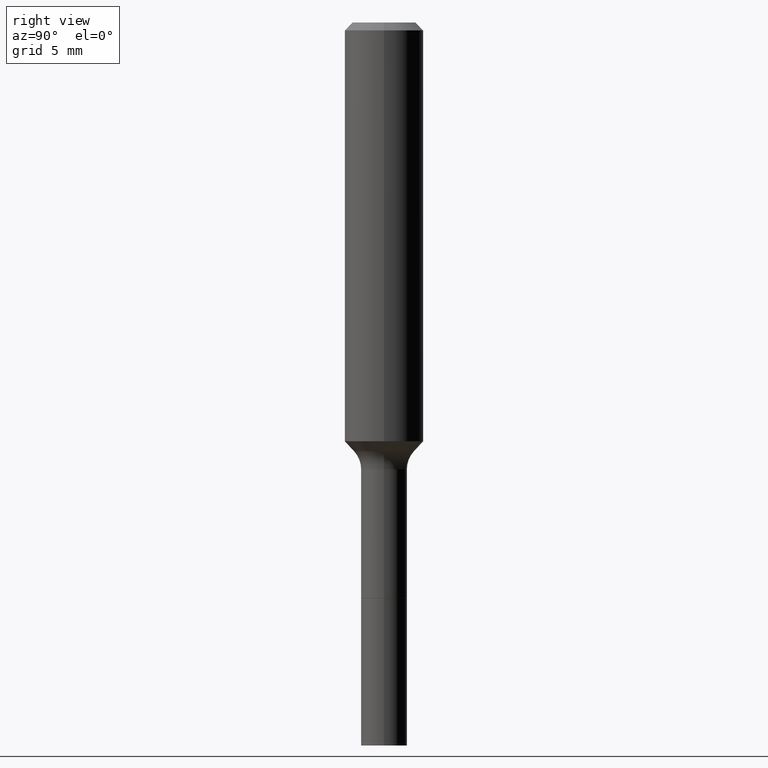
[diagram: clean part render]
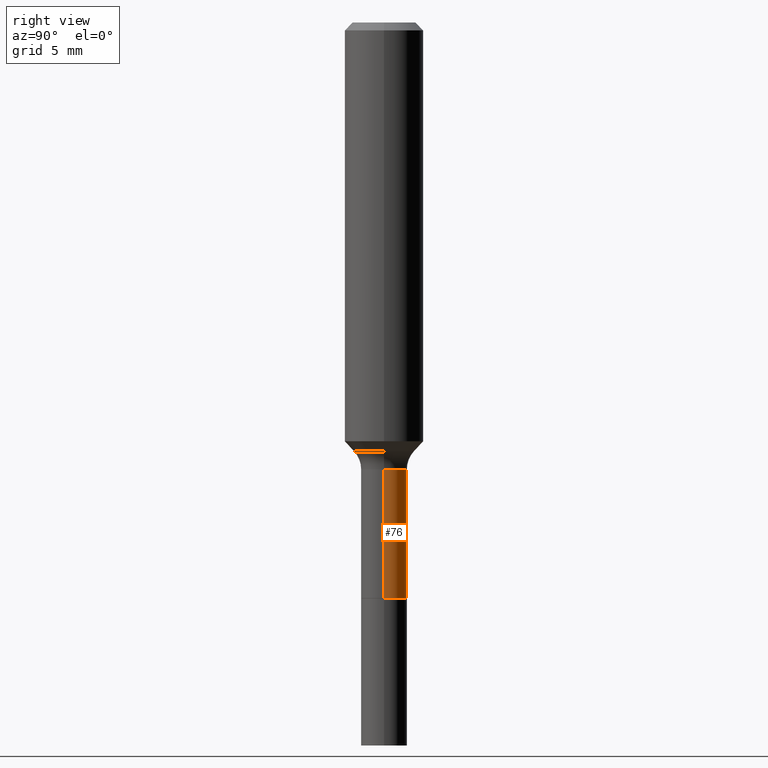
[diagram: same view with one face highlighted and labeled with its STEP entity id]
A machine part, right view. The second image highlights one B-rep face of the part: STEP entity #76.
In plain terms, the highlighted cylindrical surface (edge-blend (fillet) strip) has radius 1.7501 mm, axis along (-0, 0, 1).
Its self-contained STEP definition (entity closure, byte-faithful):
#3 = DIRECTION ( 'NONE',  ( 1.000000000000000000, -6.982962677686265922E-15, 0.000000000000000000 ) ) ;
#15 = LINE ( 'NONE', #282, #436 ) ;
#23 = ORIENTED_EDGE ( 'NONE', *, *, #266, .F. ) ;
#45 = CARTESIAN_POINT ( 'NONE',  ( -0.06889999999999996128, -4.856417707030973435E-15, -1.338399999999999812 ) ) ;
#57 = CARTESIAN_POINT ( 'NONE',  ( -0.06890000000000001679, -4.856417707030972646E-15, -1.723899999999999988 ) ) ;
#69 = EDGE_LOOP ( 'NONE', ( #435, #167, #85, #23 ) ) ;
#76 = ADVANCED_FACE ( 'NONE', ( #114 ), #512, .T. ) ;
#81 = CARTESIAN_POINT ( 'NONE',  ( 0.06890000000000000291, -6.500090808524281979E-15, -1.723899999999999988 ) ) ;
#85 = ORIENTED_EDGE ( 'NONE', *, *, #420, .F. ) ;
#97 = DIRECTION ( 'NONE',  ( -2.445468806185136597E-29, 3.491481338843145583E-15, 1.000000000000000000 ) ) ;
#104 = VERTEX_POINT ( 'NONE', #45 ) ;
#109 = AXIS2_PLACEMENT_3D ( 'NONE', #245, #447, #3 ) ;
#114 = FACE_OUTER_BOUND ( 'NONE', #69, .T. ) ;
#129 = DIRECTION ( 'NONE',  ( -2.445468806185136877E-29, 3.491481338843145188E-15, 1.000000000000000000 ) ) ;
#146 = AXIS2_PLACEMENT_3D ( 'NONE', #485, #164, #270 ) ;
#158 = DIRECTION ( 'NONE',  ( 1.000000000000000000, -6.982962677686269866E-15, 0.000000000000000000 ) ) ;
#164 = DIRECTION ( 'NONE',  ( -2.445468806185136597E-29, 3.491481338843145583E-15, 1.000000000000000000 ) ) ;
#167 = ORIENTED_EDGE ( 'NONE', *, *, #178, .T. ) ;
#178 = EDGE_CURVE ( 'NONE', #505, #104, #15, .T. ) ;
#207 = CARTESIAN_POINT ( 'NONE',  ( 3.273015450198186344E-29, -4.672998623907665346E-15, -1.338399999999999812 ) ) ;
#213 = CIRCLE ( 'NONE', #109, 0.06890000000000000291 ) ;
#245 = CARTESIAN_POINT ( 'NONE',  ( 4.215743674982556354E-29, -6.018964680031698240E-15, -1.723899999999999988 ) ) ;
#251 = LINE ( 'NONE', #500, #484 ) ;
#266 = EDGE_CURVE ( 'NONE', #396, #333, #251, .T. ) ;
#270 = DIRECTION ( 'NONE',  ( 1.000000000000000000, -6.982962677686267499E-15, 4.876176775795935793E-29 ) ) ;
#282 = CARTESIAN_POINT ( 'NONE',  ( -0.06889999999999997515, 4.895639449387088515E-16, -3.389146277185628616E-30 ) ) ;
#333 = VERTEX_POINT ( 'NONE', #388 ) ;
#388 = CARTESIAN_POINT ( 'NONE',  ( 0.06889999999999996128, -5.154124752400249085E-15, -1.338399999999999812 ) ) ;
#396 = VERTEX_POINT ( 'NONE', #81 ) ;
#407 = CIRCLE ( 'NONE', #429, 0.06889999999999996128 ) ;
#412 = DIRECTION ( 'NONE',  ( -2.445468806185136877E-29, 3.491481338843145188E-15, 1.000000000000000000 ) ) ;
#420 = EDGE_CURVE ( 'NONE', #333, #104, #407, .T. ) ;
#429 = AXIS2_PLACEMENT_3D ( 'NONE', #207, #97, #158 ) ;
#435 = ORIENTED_EDGE ( 'NONE', *, *, #454, .T. ) ;
#436 = VECTOR ( 'NONE', #412, 39.37007874015748143 ) ;
#447 = DIRECTION ( 'NONE',  ( -2.445468806185136597E-29, 3.491481338843145583E-15, 1.000000000000000000 ) ) ;
#454 = EDGE_CURVE ( 'NONE', #396, #505, #213, .T. ) ;
#484 = VECTOR ( 'NONE', #129, 39.37007874015748143 ) ;
#485 = CARTESIAN_POINT ( 'NONE',  ( 0.000000000000000000, 0.000000000000000000, 0.000000000000000000 ) ) ;
#500 = CARTESIAN_POINT ( 'NONE',  ( 0.06889999999999997515, -4.811261284925836399E-16, 3.359685798523398567E-30 ) ) ;
#505 = VERTEX_POINT ( 'NONE', #57 ) ;
#512 = CYLINDRICAL_SURFACE ( 'NONE', #146, 0.06889999999999997515 ) ;